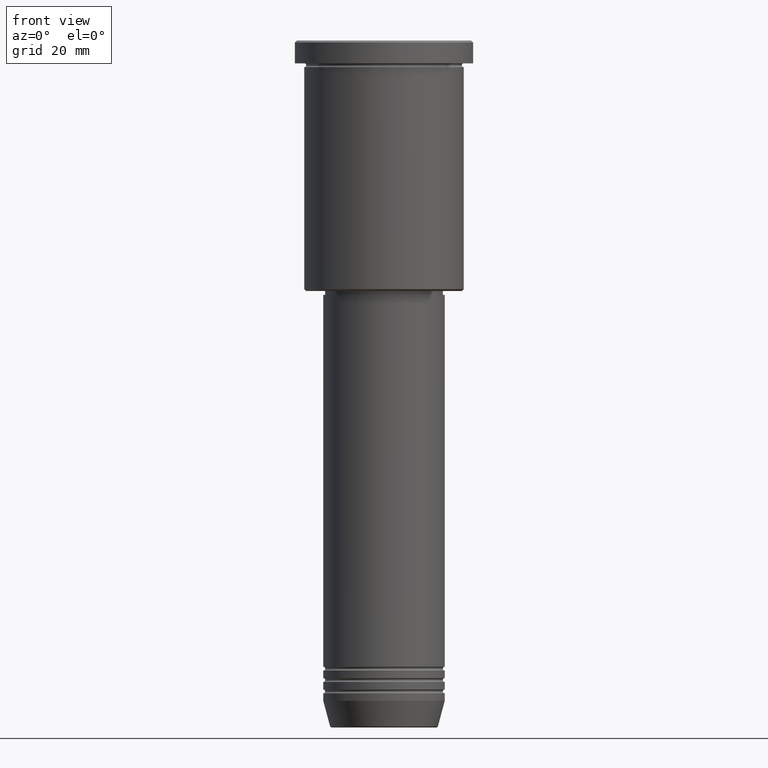
[diagram: clean part render]
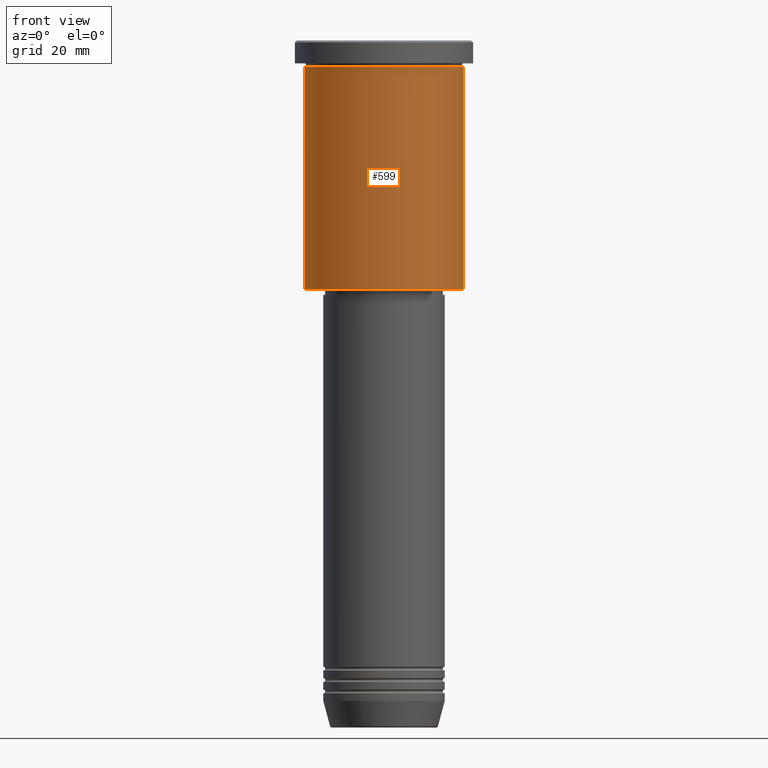
[diagram: same view with one face highlighted and labeled with its STEP entity id]
A machine part, front view. The second image highlights one B-rep face of the part: STEP entity #599.
In plain terms, the highlighted cylindrical surface (partial cylindrical patch) has radius 21 mm, axis along (-0, -0, 1).
Its self-contained STEP definition (entity closure, byte-faithful):
#33 = EDGE_LOOP ( 'NONE', ( #1036, #264, #722, #85 ) ) ;
#34 = CARTESIAN_POINT ( 'NONE',  ( -21.00000000000000000, 2.571758278209441661E-15, -65.49999999999997158 ) ) ;
#85 = ORIENTED_EDGE ( 'NONE', *, *, #751, .F. ) ;
#113 = DIRECTION ( 'NONE',  ( -0.000000000000000000, -0.000000000000000000, 1.000000000000000000 ) ) ;
#128 = DIRECTION ( 'NONE',  ( -0.000000000000000000, -0.000000000000000000, 1.000000000000000000 ) ) ;
#158 = CARTESIAN_POINT ( 'NONE',  ( 0.000000000000000000, 0.000000000000000000, 0.000000000000000000 ) ) ;
#171 = AXIS2_PLACEMENT_3D ( 'NONE', #158, #259, #530 ) ;
#173 = VECTOR ( 'NONE', #184, 1000.000000000000000 ) ;
#184 = DIRECTION ( 'NONE',  ( -0.000000000000000000, -0.000000000000000000, 1.000000000000000000 ) ) ;
#187 = CIRCLE ( 'NONE', #390, 21.00000000000000000 ) ;
#189 = CIRCLE ( 'NONE', #522, 21.00000000000000000 ) ;
#194 = CARTESIAN_POINT ( 'NONE',  ( -21.00000000000000000, 2.571758278209441661E-15, -6.999999999999994671 ) ) ;
#218 = CARTESIAN_POINT ( 'NONE',  ( -21.00000000000000000, 2.571758278209441661E-15, 0.000000000000000000 ) ) ;
#232 = LINE ( 'NONE', #400, #173 ) ;
#251 = FACE_OUTER_BOUND ( 'NONE', #33, .T. ) ;
#259 = DIRECTION ( 'NONE',  ( -0.000000000000000000, -0.000000000000000000, 1.000000000000000000 ) ) ;
#260 = EDGE_CURVE ( 'NONE', #457, #1015, #189, .T. ) ;
#263 = CARTESIAN_POINT ( 'NONE',  ( 0.000000000000000000, 0.000000000000000000, -6.999999999999994671 ) ) ;
#264 = ORIENTED_EDGE ( 'NONE', *, *, #260, .T. ) ;
#339 = CARTESIAN_POINT ( 'NONE',  ( 21.00000000000000000, 0.000000000000000000, -6.999999999999994671 ) ) ;
#364 = DIRECTION ( 'NONE',  ( 1.000000000000000000, 0.000000000000000000, 0.000000000000000000 ) ) ;
#379 = DIRECTION ( 'NONE',  ( -1.000000000000000000, 0.000000000000000000, 0.000000000000000000 ) ) ;
#390 = AXIS2_PLACEMENT_3D ( 'NONE', #263, #1150, #364 ) ;
#400 = CARTESIAN_POINT ( 'NONE',  ( 21.00000000000000000, 0.000000000000000000, 0.000000000000000000 ) ) ;
#457 = VERTEX_POINT ( 'NONE', #34 ) ;
#522 = AXIS2_PLACEMENT_3D ( 'NONE', #573, #113, #379 ) ;
#530 = DIRECTION ( 'NONE',  ( 1.000000000000000000, 0.000000000000000000, 0.000000000000000000 ) ) ;
#532 = VERTEX_POINT ( 'NONE', #339 ) ;
#539 = VECTOR ( 'NONE', #128, 1000.000000000000000 ) ;
#573 = CARTESIAN_POINT ( 'NONE',  ( 0.000000000000000000, 0.000000000000000000, -65.49999999999997158 ) ) ;
#599 = ADVANCED_FACE ( 'NONE', ( #251 ), #970, .T. ) ;
#722 = ORIENTED_EDGE ( 'NONE', *, *, #1157, .T. ) ;
#738 = LINE ( 'NONE', #218, #539 ) ;
#751 = EDGE_CURVE ( 'NONE', #869, #532, #187, .T. ) ;
#869 = VERTEX_POINT ( 'NONE', #194 ) ;
#970 = CYLINDRICAL_SURFACE ( 'NONE', #171, 21.00000000000000000 ) ;
#1002 = CARTESIAN_POINT ( 'NONE',  ( 21.00000000000000000, 0.000000000000000000, -65.49999999999997158 ) ) ;
#1015 = VERTEX_POINT ( 'NONE', #1002 ) ;
#1036 = ORIENTED_EDGE ( 'NONE', *, *, #1176, .F. ) ;
#1150 = DIRECTION ( 'NONE',  ( -0.000000000000000000, -0.000000000000000000, 1.000000000000000000 ) ) ;
#1157 = EDGE_CURVE ( 'NONE', #1015, #532, #232, .T. ) ;
#1176 = EDGE_CURVE ( 'NONE', #457, #869, #738, .T. ) ;